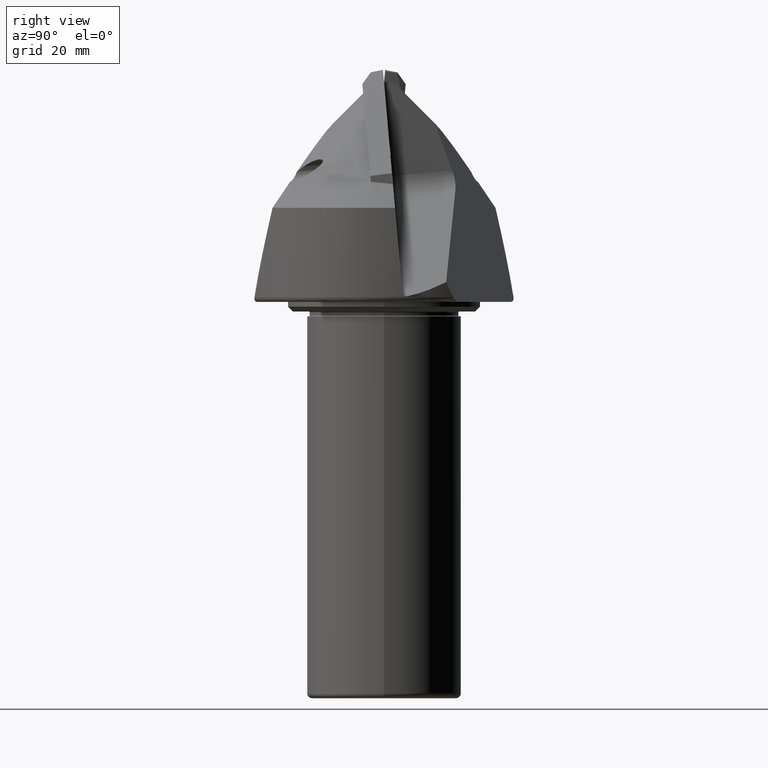
[diagram: clean part render]
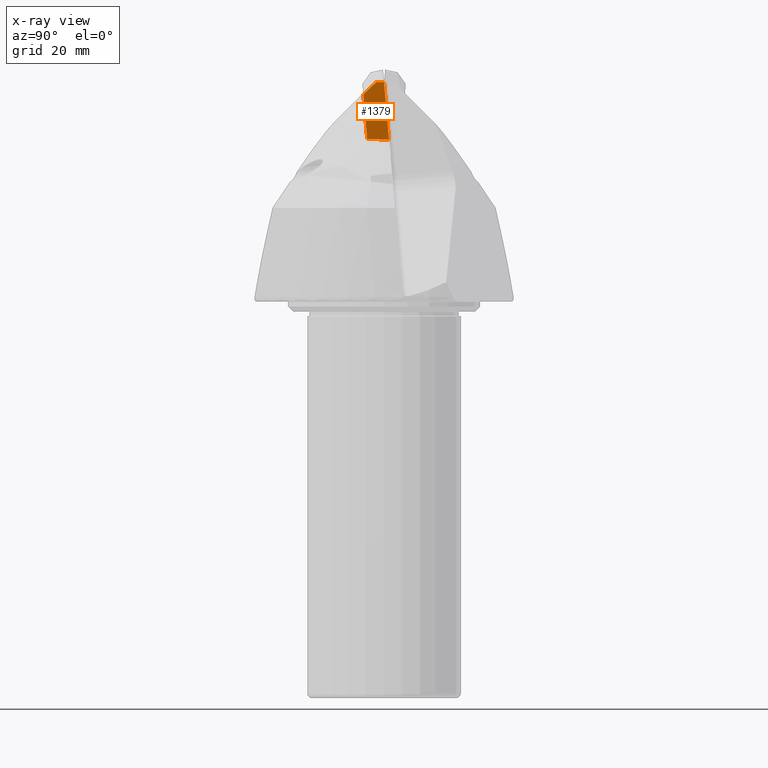
[diagram: x-ray — body ghosted, one internal face saturated and labeled with its STEP entity id]
A machine part, right view, then the same camera in x-ray: the body is ghosted and one INTERNAL B-rep face — a face not visible from any outside direction — is saturated and labeled: STEP entity #1379.
In plain terms, the highlighted planar face has unit normal (-0.9925, -0.1214, -0.0106).
Its self-contained STEP definition (entity closure, byte-faithful):
#22=(
BOUNDED_CURVE()
B_SPLINE_CURVE(2,(#2382,#2383,#2384),.UNSPECIFIED.,.F.,.F.)
B_SPLINE_CURVE_WITH_KNOTS((3,3),(1.29640021601113,2.12736517776967),
 .UNSPECIFIED.)
CURVE()
GEOMETRIC_REPRESENTATION_ITEM()
RATIONAL_B_SPLINE_CURVE((1.31997539518259,1.2625364085286,1.))
REPRESENTATION_ITEM('')
);
#195=FACE_OUTER_BOUND('',#274,.T.);
#274=EDGE_LOOP('',(#1109,#1110,#1111,#1112,#1113));
#334=ELLIPSE('',#1516,24.6165271443748,3.);
#394=LINE('',#2180,#486);
#414=LINE('',#2380,#506);
#415=LINE('',#2385,#507);
#486=VECTOR('',#1738,10.);
#506=VECTOR('',#1864,10.);
#507=VECTOR('',#1865,10.);
#579=VERTEX_POINT('',#2177);
#580=VERTEX_POINT('',#2179);
#620=VERTEX_POINT('',#2359);
#626=VERTEX_POINT('',#2379);
#627=VERTEX_POINT('',#2381);
#737=EDGE_CURVE('',#579,#580,#394,.T.);
#791=EDGE_CURVE('',#620,#580,#334,.T.);
#801=EDGE_CURVE('',#626,#579,#414,.T.);
#802=EDGE_CURVE('',#627,#626,#22,.T.);
#803=EDGE_CURVE('',#620,#627,#415,.T.);
#1109=ORIENTED_EDGE('',*,*,#791,.T.);
#1110=ORIENTED_EDGE('',*,*,#737,.F.);
#1111=ORIENTED_EDGE('',*,*,#801,.F.);
#1112=ORIENTED_EDGE('',*,*,#802,.F.);
#1113=ORIENTED_EDGE('',*,*,#803,.F.);
#1319=PLANE('',#1527);
#1379=ADVANCED_FACE('',(#195),#1319,.F.);
#1516=AXIS2_PLACEMENT_3D('',#2360,#1838,#1839);
#1527=AXIS2_PLACEMENT_3D('',#2378,#1862,#1863);
#1738=DIRECTION('',(6.57154355884286E-16,0.0871557427476581,-0.996194698091746));
#1838=DIRECTION('center_axis',(-0.992546151641322,-0.121405593760132,-0.0106216131426459));
#1839=DIRECTION('ref_axis',(0.12186934340515,-0.98876921387645,-0.0865060970576291));
#1862=DIRECTION('center_axis',(-0.992546151641322,-0.121405593760132,-0.0106216131426459));
#1863=DIRECTION('ref_axis',(6.59702713732679E-16,0.0871557427476581,-0.996194698091746));
#1864=DIRECTION('',(-0.121412442748209,0.992602145245472,0.));
#1865=DIRECTION('',(-6.59702713732679E-16,-0.0871557427476581,0.996194698091746));
#2177=CARTESIAN_POINT('',(0.999999999999996,-1.53685811299376E-8,0.));
#2179=CARTESIAN_POINT('',(0.999999998120157,1.04533872304383,-11.9482762784927));
#2180=CARTESIAN_POINT('',(0.999999998120161,1.61531946950315,-18.4631860220897));
#2359=CARTESIAN_POINT('',(1.55253052406307,-3.48519213739157,-11.7957813656198));
#2360=CARTESIAN_POINT('Origin',(3.36866850507807,-18.0120523498237,-15.4636493082858));
#2378=CARTESIAN_POINT('Origin',(1.,1.27731886275851,-14.5998215842971));
#2379=CARTESIAN_POINT('',(1.19606755643902,-1.60294179571,0.));
#2380=CARTESIAN_POINT('',(0.900920963166075,0.810016341144046,-1.11022302462516E-15));
#2381=CARTESIAN_POINT('',(1.55253052406307,-4.29278888815602,-2.56490826484205));
#2382=CARTESIAN_POINT('Ctrl Pts',(1.55253052406307,-4.29278888815602,-2.56490826484205));
#2383=CARTESIAN_POINT('Ctrl Pts',(1.30381313309605,-2.42082410171635,-0.719944360429265));
#2384=CARTESIAN_POINT('Ctrl Pts',(1.19606755643902,-1.60294179571,4.44089209850063E-15));
#2385=CARTESIAN_POINT('',(1.55253052406308,-3.20555727865435,-14.9920224266616));